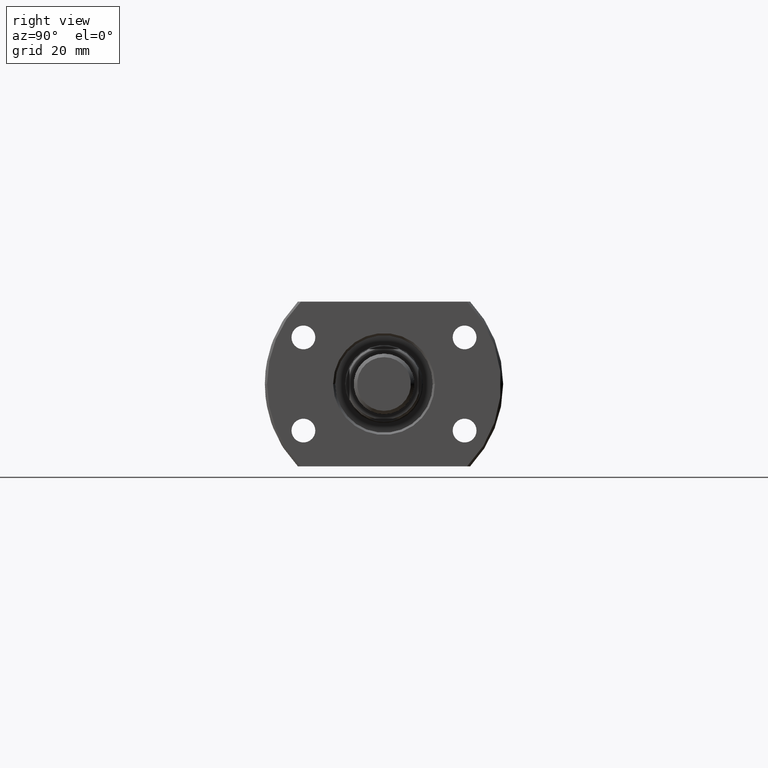
[diagram: clean part render]
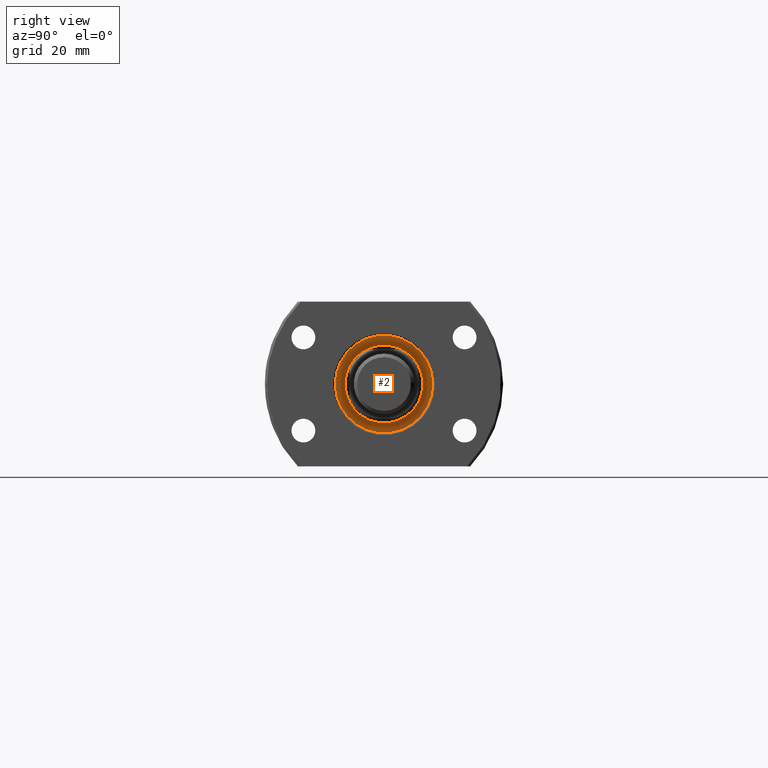
[diagram: same view with one face highlighted and labeled with its STEP entity id]
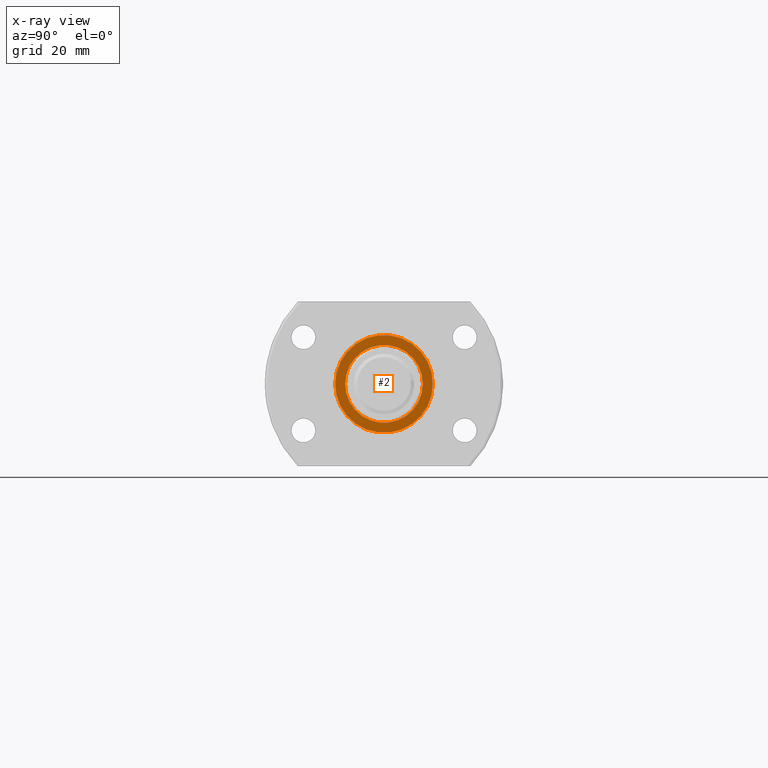
[diagram: x-ray of the same camera — body ghosted, the highlighted face saturated]
A machine part, right view. The second image highlights one B-rep face of the part: STEP entity #2.
The next image is the same camera in x-ray: the body ghosted, the highlighted face saturated — about 0% of this face is hidden behind the body in this view.
In plain terms, the highlighted planar face has unit normal (1, -0, 0).
Its self-contained STEP definition (entity closure, byte-faithful):
#2 = ADVANCED_FACE ( 'NONE', ( #3500, #3491 ), #2060, .T. ) ;
#34 = AXIS2_PLACEMENT_3D ( 'NONE', #1910, #498, #2193 ) ;
#45 = ORIENTED_EDGE ( 'NONE', *, *, #754, .T. ) ;
#77 = EDGE_CURVE ( 'NONE', #319, #1351, #1616, .T. ) ;
#319 = VERTEX_POINT ( 'NONE', #2416 ) ;
#417 = DIRECTION ( 'NONE',  ( 2.898915675410130686E-14, 1.000000000000000000, 0.000000000000000000 ) ) ;
#487 = CARTESIAN_POINT ( 'NONE',  ( 24.50000000000000000, -6.492221922330912001E-13, 0.000000000000000000 ) ) ;
#498 = DIRECTION ( 'NONE',  ( 1.000000000000000000, -2.886466111666351885E-14, 0.000000000000000000 ) ) ;
#519 = VERTEX_POINT ( 'NONE', #586 ) ;
#586 = CARTESIAN_POINT ( 'NONE',  ( 24.50000000000026290, 8.999999999999291234, 0.000000000000000000 ) ) ;
#611 = ORIENTED_EDGE ( 'NONE', *, *, #77, .T. ) ;
#629 = DIRECTION ( 'NONE',  ( 1.000000000000000000, -2.886466111666351885E-14, 0.000000000000000000 ) ) ;
#754 = EDGE_CURVE ( 'NONE', #1351, #319, #1567, .T. ) ;
#797 = VERTEX_POINT ( 'NONE', #2766 ) ;
#1032 = CIRCLE ( 'NONE', #2053, 9.000000000000000000 ) ;
#1136 = AXIS2_PLACEMENT_3D ( 'NONE', #3210, #629, #1755 ) ;
#1263 = DIRECTION ( 'NONE',  ( 1.000000000000000000, -2.886466111666351885E-14, 0.000000000000000000 ) ) ;
#1289 = EDGE_LOOP ( 'NONE', ( #1432, #3031 ) ) ;
#1351 = VERTEX_POINT ( 'NONE', #2706 ) ;
#1368 = CARTESIAN_POINT ( 'NONE',  ( 24.50000000000000000, -7.071841973582561613E-13, 0.000000000000000000 ) ) ;
#1432 = ORIENTED_EDGE ( 'NONE', *, *, #2304, .F. ) ;
#1565 = DIRECTION ( 'NONE',  ( 2.898915675410130686E-14, 1.000000000000000000, 0.000000000000000000 ) ) ;
#1567 = CIRCLE ( 'NONE', #1988, 11.25000000000000178 ) ;
#1572 = CIRCLE ( 'NONE', #34, 9.000000000000000000 ) ;
#1616 = CIRCLE ( 'NONE', #3277, 11.25000000000000178 ) ;
#1755 = DIRECTION ( 'NONE',  ( 2.886466111666351885E-14, 1.000000000000000000, 0.000000000000000000 ) ) ;
#1910 = CARTESIAN_POINT ( 'NONE',  ( 24.50000000000000000, -7.071841973582561613E-13, 0.000000000000000000 ) ) ;
#1975 = DIRECTION ( 'NONE',  ( 1.000000000000000000, -2.886466111666351885E-14, 0.000000000000000000 ) ) ;
#1988 = AXIS2_PLACEMENT_3D ( 'NONE', #487, #2965, #417 ) ;
#2053 = AXIS2_PLACEMENT_3D ( 'NONE', #1368, #1975, #2835 ) ;
#2060 = PLANE ( 'NONE',  #1136 ) ;
#2193 = DIRECTION ( 'NONE',  ( 2.891205793294678701E-14, 1.000000000000000000, 0.000000000000000000 ) ) ;
#2304 = EDGE_CURVE ( 'NONE', #519, #797, #1032, .T. ) ;
#2416 = CARTESIAN_POINT ( 'NONE',  ( 24.49999999999967315, -11.25000000000065015, 1.377727649040772586E-15 ) ) ;
#2668 = EDGE_CURVE ( 'NONE', #797, #519, #1572, .T. ) ;
#2706 = CARTESIAN_POINT ( 'NONE',  ( 24.50000000000032685, 11.24999999999935341, 0.000000000000000000 ) ) ;
#2766 = CARTESIAN_POINT ( 'NONE',  ( 24.49999999999974065, -9.000000000000706990, 1.102182119232659129E-15 ) ) ;
#2835 = DIRECTION ( 'NONE',  ( 2.891205793294678701E-14, 1.000000000000000000, 0.000000000000000000 ) ) ;
#2965 = DIRECTION ( 'NONE',  ( 1.000000000000000000, -2.886466111666351885E-14, 0.000000000000000000 ) ) ;
#3026 = EDGE_LOOP ( 'NONE', ( #45, #611 ) ) ;
#3031 = ORIENTED_EDGE ( 'NONE', *, *, #2668, .F. ) ;
#3210 = CARTESIAN_POINT ( 'NONE',  ( 24.50000000000000000, -6.492221922330912001E-13, 0.000000000000000000 ) ) ;
#3253 = CARTESIAN_POINT ( 'NONE',  ( 24.50000000000000000, -6.492221922330912001E-13, 0.000000000000000000 ) ) ;
#3277 = AXIS2_PLACEMENT_3D ( 'NONE', #3253, #1263, #1565 ) ;
#3491 = FACE_OUTER_BOUND ( 'NONE', #3026, .T. ) ;
#3500 = FACE_BOUND ( 'NONE', #1289, .T. ) ;